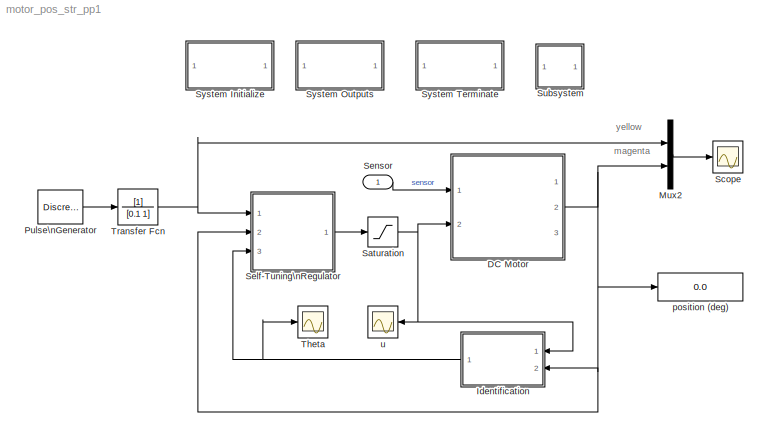
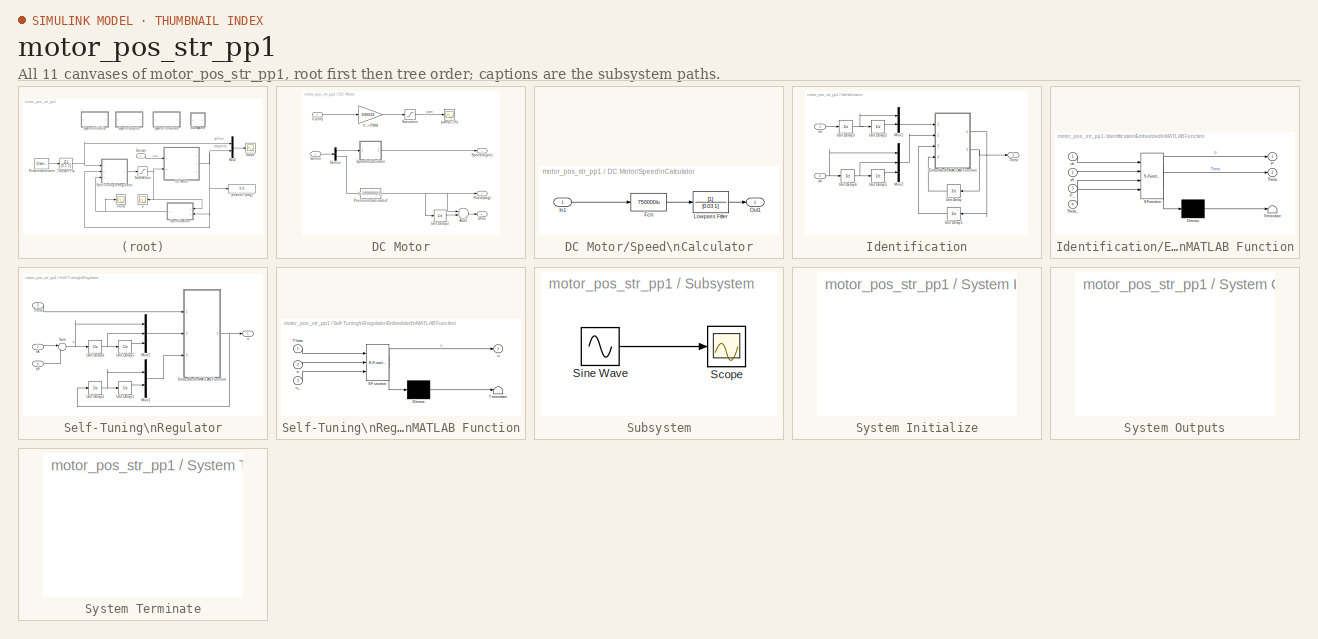
[diagram: thumbnail index - all 11 canvases of the model, root first then tree order]
MODEL motor_pos_str_pp1
KIND model
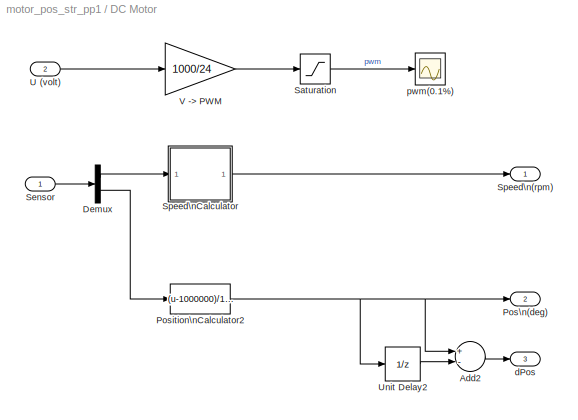
BLOCK [SubSystem] DC Motor
  FunctionWithSeparateData = off
  MaskHideContents = off
  MinAlgLoopOccurrences = off
  Opaque = off
  Ports = [2, 3]
  PropExecContextOutsideSubsystem = off
  RTWSystemCode = Auto
  RequestExecContextInheritance = off
  SID = 2
BLOCK [Sum] DC Motor/Add2
  InputSameDT = off
  Inputs = +-
  OutDataType = sfix(16)
  OutDataTypeMode = Inherit via internal rule
  OutDataTypeStr = Inherit: Inherit via internal rule
  OutScaling = 2^-10
  Ports = [2, 1]
  SID = 5
  SaturateOnIntegerOverflow = off
BLOCK [Demux] DC Motor/Demux
  DisplayOption = bar
  Outputs = 2
  Ports = [1, 2]
  SID = 6
BLOCK [Outport] DC Motor/Pos\n(deg)
  IconDisplay = Port number
  OutDataType = sfix(16)
  OutScaling = 2^0
  Port = 2
  SID = 18
BLOCK [Fcn] DC Motor/Position\nCalculator2
  Expr = (u-1000000)/1600*360
  SID = 7
BLOCK [Saturate] DC Motor/Saturation
  LowerLimit = -800
  SID = 8
  UpperLimit = 800
BLOCK [Inport] DC Motor/Sensor
  IconDisplay = Port number
  OutDataType = sfix(16)
  OutScaling = 2^0
  PortDimensions = 2
  SID = 3
BLOCK [Outport] DC Motor/Speed\n(rpm)
  IconDisplay = Port number
  OutDataType = sfix(16)
  OutScaling = 2^0
  SID = 17
BLOCK [SubSystem] DC Motor/Speed\nCalculator
  FunctionWithSeparateData = off
  MaskHideContents = off
  MinAlgLoopOccurrences = off
  Opaque = off
  Ports = [1, 1]
  PropExecContextOutsideSubsystem = off
  RTWSystemCode = Auto
  RequestExecContextInheritance = off
  SID = 9
BLOCK [Fcn] DC Motor/Speed\nCalculator/Fcn
  Expr = 750000/u
  SID = 11
BLOCK [Inport] DC Motor/Speed\nCalculator/In1
  IconDisplay = Port number
  OutDataType = sfix(16)
  OutScaling = 2^0
  SID = 10
BLOCK [TransferFcn] DC Motor/Speed\nCalculator/Lowpass Filter
  Denominator = [0.03 1]
  SID = 12
BLOCK [Outport] DC Motor/Speed\nCalculator/Out1
  IconDisplay = Port number
  OutDataType = sfix(16)
  OutScaling = 2^0
  SID = 13
BLOCK [Inport] DC Motor/U (volt)
  IconDisplay = Port number
  OutDataType = sfix(16)
  OutScaling = 2^0
  Port = 2
  PortDimensions = 1
  SID = 4
BLOCK [UnitDelay] DC Motor/Unit Delay2
  SID = 14
  SampleTime = -1
BLOCK [Gain] DC Motor/V -> PWM
  Gain = 1000/24
  OutDataType = sfix(16)
  OutDataTypeMode = Inherit via internal rule
  OutDataTypeStr = Inherit: Inherit via internal rule
  OutScaling = 2^0
  ParameterDataType = sfix(16)
  ParameterScaling = 2^0
  SID = 15
  SaturateOnIntegerOverflow = off
BLOCK [Outport] DC Motor/dPos
  IconDisplay = Port number
  OutDataType = sfix(16)
  OutScaling = 2^0
  Port = 3
  SID = 19
BLOCK [Scope] DC Motor/pwm(0.1%)
  DataFormat = Array
  Floating = off
  LimitDataPoints = off
  NumInputPorts = 1
  Ports = [1]
  SID = 16
  SampleTime = 0
  SaveName = ScopeData3
  SaveToWorkspace = on
  YMax = 1100
  YMin = -1100
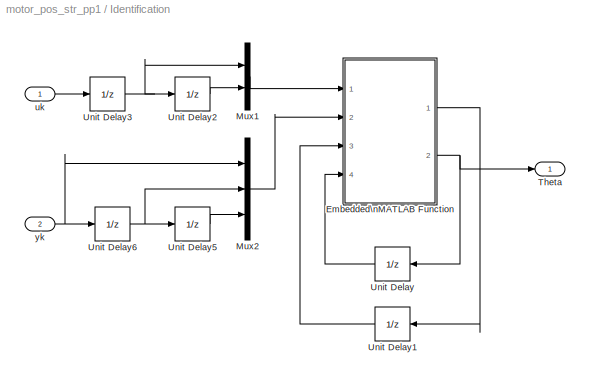
BLOCK [SubSystem] Identification
  FunctionWithSeparateData = off
  MaskHideContents = off
  MinAlgLoopOccurrences = off
  Opaque = off
  Ports = [2, 1]
  PropExecContextOutsideSubsystem = off
  RTWSystemCode = Auto
  RequestExecContextInheritance = off
  SID = 20
BLOCK [SubSystem] Identification/Embedded\nMATLAB Function
  FunctionWithSeparateData = off
  MaskDescription = Embedded MATLAB block
  MaskDisplay = disp('Uocluong');
  MaskHideContents = off
  MaskIconFrame = on
  MaskIconOpaque = off
  MaskIconRotate = none
  MaskIconUnits = autoscale
  MaskPortRotate = default
  MaskSelfModifiable = on
  MaskType = Stateflow
  MinAlgLoopOccurrences = off
  Opaque = off
  PermitHierarchicalResolution = ExplicitOnly
  Ports = [4, 2]
  PropExecContextOutsideSubsystem = off
  RTWSystemCode = Auto
  RequestExecContextInheritance = off
  SID = 23
BLOCK [Demux] Identification/Embedded\nMATLAB Function/ Demux 
  Outputs = 1
  Ports = [1, 1]
  SID = 11
BLOCK [S-Function] Identification/Embedded\nMATLAB Function/ SFunction 
  EnableBusSupport = off
  FunctionName = sf_sfun
  PortCounts = [4 3]
  Ports = [4, 3]
  SID = 10
  Tag = Stateflow S-Function motor_pos_str_pp1 1
BLOCK [Terminator] Identification/Embedded\nMATLAB Function/ Terminator 
  SID = 13
BLOCK [Outport] Identification/Embedded\nMATLAB Function/P
  IconDisplay = Port number
  SID = 8
BLOCK [Inport] Identification/Embedded\nMATLAB Function/P_
  IconDisplay = Port number
  Port = 3
  SID = 3
BLOCK [Outport] Identification/Embedded\nMATLAB Function/Theta
  IconDisplay = Port number
  Port = 2
  SID = 9
BLOCK [Inport] Identification/Embedded\nMATLAB Function/Theta_
  IconDisplay = Port number
  Port = 4
  SID = 4
BLOCK [Inport] Identification/Embedded\nMATLAB Function/uk
  IconDisplay = Port number
  OutDataType = sfix(16)
  OutScaling = 2^0
  SID = 1
BLOCK [Inport] Identification/Embedded\nMATLAB Function/yk
  IconDisplay = Port number
  Port = 2
  SID = 2
BLOCK [Mux] Identification/Mux1
  DisplayOption = bar
  Inputs = 2
  Ports = [2, 1]
  SID = 24
BLOCK [Mux] Identification/Mux2
  DisplayOption = bar
  Inputs = 3
  Ports = [3, 1]
  SID = 25
BLOCK [Outport] Identification/Theta
  IconDisplay = Port number
  OutDataType = fixdt(1, 16)
  OutScaling = 2^0
  PortDimensions = 4
  SID = 32
BLOCK [UnitDelay] Identification/Unit Delay
  SID = 26
  SampleTime = -1
  X0 = [-1; 0.1; 0.1; 1]
BLOCK [UnitDelay] Identification/Unit Delay1
  SID = 27
  SampleTime = -1
  X0 = 1e5*eye(4)
BLOCK [UnitDelay] Identification/Unit Delay2
  SID = 28
  SampleTime = -1
BLOCK [UnitDelay] Identification/Unit Delay3
  SID = 29
  SampleTime = -1
BLOCK [UnitDelay] Identification/Unit Delay5
  SID = 30
  SampleTime = -1
BLOCK [UnitDelay] Identification/Unit Delay6
  SID = 31
  SampleTime = -1
BLOCK [Inport] Identification/uk
  IconDisplay = Port number
  OutDataType = fixdt(1, 16)
  OutScaling = 2^0
  PortDimensions = 1
  SID = 21
BLOCK [Inport] Identification/yk
  IconDisplay = Port number
  OutDataType = fixdt(1, 16)
  OutScaling = 2^0
  Port = 2
  PortDimensions = 1
  SID = 22
BLOCK [Mux] Mux2
  DisplayOption = bar
  Inputs = 2
  Ports = [2, 1]
  SID = 33
BLOCK [DiscretePulseGenerator] Pulse\nGenerator
  Amplitude = 1000
  Period = 4
  PhaseDelay = 0
  Ports = [0, 1]
  PulseType = Time based
  PulseWidth = 50
  SID = 34
  SampleTime = 1
BLOCK [Saturate] Saturation
  LowerLimit = -16.8
  SID = 35
  UpperLimit = 16.8
BLOCK [Scope] Scope
  DataFormat = StructureWithTime
  Floating = off
  LimitDataPoints = off
  NumInputPorts = 1
  Ports = [1]
  SID = 36
  SampleTime = 0
  SaveToWorkspace = on
BLOCK [SubSystem] Self-Tuning\nRegulator
  FunctionWithSeparateData = off
  MaskHideContents = off
  MinAlgLoopOccurrences = off
  Opaque = off
  Ports = [3, 1]
  PropExecContextOutsideSubsystem = off
  RTWSystemCode = Auto
  RequestExecContextInheritance = off
  SID = 37
BLOCK [SubSystem] Self-Tuning\nRegulator/Embedded\nMATLAB Function
  FunctionWithSeparateData = off
  MaskDescription = Embedded MATLAB block
  MaskDisplay = disp('STR_pp1');
  MaskHideContents = off
  MaskIconFrame = on
  MaskIconOpaque = off
  MaskIconRotate = none
  MaskIconUnits = autoscale
  MaskPortRotate = default
  MaskSelfModifiable = on
  MaskType = Stateflow
  MinAlgLoopOccurrences = off
  Opaque = off
  PermitHierarchicalResolution = ExplicitOnly
  Ports = [3, 1]
  PropExecContextOutsideSubsystem = off
  RTWSystemCode = Auto
  RequestExecContextInheritance = off
  SID = 41
BLOCK [Demux] Self-Tuning\nRegulator/Embedded\nMATLAB Function/ Demux 
  Outputs = 1
  Ports = [1, 1]
  SID = 9
BLOCK [S-Function] Self-Tuning\nRegulator/Embedded\nMATLAB Function/ SFunction 
  EnableBusSupport = off
  FunctionName = sf_sfun
  PortCounts = [3 2]
  Ports = [3, 2]
  SID = 8
  Tag = Stateflow S-Function motor_pos_str_pp1 3
BLOCK [Terminator] Self-Tuning\nRegulator/Embedded\nMATLAB Function/ Terminator 
  SID = 11
BLOCK [Inport] Self-Tuning\nRegulator/Embedded\nMATLAB Function/Theta
  IconDisplay = Port number
  SID = 1
BLOCK [Inport] Self-Tuning\nRegulator/Embedded\nMATLAB Function/e
  IconDisplay = Port number
  Port = 2
  SID = 2
BLOCK [Outport] Self-Tuning\nRegulator/Embedded\nMATLAB Function/u
  IconDisplay = Port number
  SID = 7
BLOCK [Inport] Self-Tuning\nRegulator/Embedded\nMATLAB Function/u_
  IconDisplay = Port number
  Port = 3
  SID = 3
BLOCK [Mux] Self-Tuning\nRegulator/Mux1
  DisplayOption = bar
  Inputs = 2
  Ports = [2, 1]
  SID = 42
BLOCK [Mux] Self-Tuning\nRegulator/Mux2
  DisplayOption = bar
  Inputs = 3
  Ports = [3, 1]
  SID = 43
BLOCK [Sum] Self-Tuning\nRegulator/Sum
  IconShape = round
  InputSameDT = off
  Inputs = |+-
  OutDataType = sfix(16)
  OutDataTypeMode = Inherit via internal rule
  OutDataTypeStr = Inherit: Inherit via internal rule
  OutScaling = 2^0
  Ports = [2, 1]
  SID = 44
  SaturateOnIntegerOverflow = off
BLOCK [Inport] Self-Tuning\nRegulator/Theta
  IconDisplay = Port number
  OutDataType = fixdt(1, 16)
  OutScaling = 2^0
  Port = 3
  PortDimensions = 4
  SID = 40
BLOCK [UnitDelay] Self-Tuning\nRegulator/Unit Delay1
  SID = 45
  SampleTime = -1
BLOCK [UnitDelay] Self-Tuning\nRegulator/Unit Delay2
  SID = 46
  SampleTime = -1
BLOCK [UnitDelay] Self-Tuning\nRegulator/Unit Delay5
  SID = 47
  SampleTime = -1
BLOCK [UnitDelay] Self-Tuning\nRegulator/Unit Delay6
  SID = 48
  SampleTime = -1
BLOCK [Outport] Self-Tuning\nRegulator/u
  IconDisplay = Port number
  OutDataType = fixdt(1, 16)
  OutScaling = 2^0
  PortDimensions = 1
  SID = 49
BLOCK [Inport] Self-Tuning\nRegulator/wk
  IconDisplay = Port number
  OutDataType = fixdt(1, 16)
  OutScaling = 2^0
  PortDimensions = 1
  SID = 38
BLOCK [Inport] Self-Tuning\nRegulator/yk
  IconDisplay = Port number
  OutDataType = fixdt(1, 16)
  OutScaling = 2^0
  Port = 2
  PortDimensions = 1
  SID = 39
BLOCK [Inport] Sensor
  IconDisplay = Port number
  OutDataType = sfix(16)
  OutScaling = 2^0
  PortDimensions = 2
  SID = 1
BLOCK [SubSystem] Subsystem
  FunctionWithSeparateData = off
  MaskHideContents = off
  MinAlgLoopOccurrences = off
  Opaque = off
  Ports = []
  PropExecContextOutsideSubsystem = off
  RTWSystemCode = Auto
  RequestExecContextInheritance = off
  SID = 57
  TreatAsAtomicUnit = on
BLOCK [Scope] Subsystem/Scope
  DataFormat = StructureWithTime
  Floating = off
  NumInputPorts = 1
  Ports = [1]
  SID = 58
  SampleTime = 0
  SaveName = ScopeData1
BLOCK [Sin] Subsystem/Sine Wave
  Amplitude = 1
  Bias = 0
  Frequency = 1
  Offset = 0
  Phase = 0
  Ports = [0, 1]
  SID = 59
  SampleTime = 0
  Samples = 10
BLOCK [SubSystem] System Initialize
  CopyFcn = cccopyfcn(gcb)
  FunctionWithSeparateData = off
  MaskDescription = Add code to a systems Initialize function
  MaskDisplay = disp('System\\nInitialize');
  MaskEnableString = off
  MaskHelp = This block contains text fields to insert custom user code sections at the declaration, execution and exit sections of the systems initialize function.  By placing this block inside a subsytem, the custom user code will appear in that subsystems function.
  MaskHideContents = off
  MaskIconFrame = on
  MaskIconOpaque = on
  MaskIconRotate = none
  MaskIconUnits = autoscale
  MaskPortRotate = default
  MaskPromptString = Mask Parameter 1:
  MaskStyleString = edit
  MaskToolTipString = on
  MaskTunableValueString = on
  MaskType = System Initialize
  MaskValueString = 0
  MaskVariables = ShowInLibBrowser=@1;
  MaskVisibilityString = off
  MinAlgLoopOccurrences = off
  Opaque = off
  OpenFcn = ccopenfcn('System Initialize Function')
  Ports = []
  PropExecContextOutsideSubsystem = off
  RTWSystemCode = Auto
  RequestExecContextInheritance = off
  SID = 50
BLOCK [SubSystem] System Outputs
  CopyFcn = cccopyfcn(gcb)
  FunctionWithSeparateData = off
  MaskDescription = Add code to a systems Outputs function
  MaskDisplay = disp('System\\nOutputs');
  MaskEnableString = off
  MaskHelp = This block contains text fields to insert custom user code sections at the declaration, execution and exit sections of the systems outputs function.  By placing this block inside a subsytem, the custom user code will appear in that subsystems function.
  MaskHideContents = off
  MaskIconFrame = on
  MaskIconOpaque = on
  MaskIconRotate = none
  MaskIconUnits = autoscale
  MaskPortRotate = default
  MaskPromptString = Mask Parameter 1:
  MaskStyleString = edit
  MaskToolTipString = on
  MaskTunableValueString = on
  MaskType = System Outputs
  MaskValueString = 0
  MaskVariables = ShowInLibBrowser=@1;
  MaskVisibilityString = off
  MinAlgLoopOccurrences = off
  Opaque = off
  OpenFcn = ccopenfcn('System Outputs Function')
  Ports = []
  PropExecContextOutsideSubsystem = off
  RTWSystemCode = Auto
  RequestExecContextInheritance = off
  SID = 51
BLOCK [SubSystem] System Terminate
  CopyFcn = cccopyfcn(gcb)
  FunctionWithSeparateData = off
  MaskDescription = Add code to a systems Terminate function
  MaskDisplay = disp('System\\nTerminate');
  MaskEnableString = off
  MaskHelp = This block contains text fields to insert custom user code sections at the declaration, execution and exit sections of the systems terminate function.  By placing this block inside a subsytem, the custom user code will appear in that subsystems function.
  MaskHideContents = off
  MaskIconFrame = on
  MaskIconOpaque = on
  MaskIconRotate = none
  MaskIconUnits = autoscale
  MaskPortRotate = default
  MaskPromptString = Mask Parameter 1:
  MaskStyleString = edit
  MaskToolTipString = on
  MaskTunableValueString = on
  MaskType = System Terminate
  MaskValueString = 0
  MaskVariables = ShowInLibBrowser=@1;
  MaskVisibilityString = off
  MinAlgLoopOccurrences = off
  Opaque = off
  OpenFcn = ccopenfcn('System Terminate Function')
  Ports = []
  PropExecContextOutsideSubsystem = off
  RTWSystemCode = Auto
  RequestExecContextInheritance = off
  SID = 52
BLOCK [Scope] Theta
  DataFormat = StructureWithTime
  Floating = off
  LimitDataPoints = off
  NumInputPorts = 1
  Ports = [1]
  SID = 53
  SampleTime = 0
  SaveName = ScopeData2
  SaveToWorkspace = on
BLOCK [TransferFcn] Transfer Fcn
  Denominator = [0.1 1]
  SID = 54
BLOCK [Display] position (deg)
  Decimation = 1
  Lockdown = off
  Ports = [1]
  SID = 55
BLOCK [Scope] u
  DataFormat = StructureWithTime
  Floating = off
  LimitDataPoints = off
  NumInputPorts = 1
  Ports = [1]
  SID = 56
  SampleTime = 0
  SaveName = ScopeData1
  SaveToWorkspace = on
ANNOTATION (root): magenta
ANNOTATION (root): yellow
ANNOTATION Self-Tuning\nRegulator: e
LINE DC Motor/Add2:1 -> DC Motor/dPos:1
LINE DC Motor/Demux:1 -> DC Motor/Speed\nCalculator:1
LINE DC Motor/Demux:2 -> DC Motor/Position\nCalculator2:1
NET DC Motor/Position\nCalculator2:1 -> DC Motor/Add2:1, DC Motor/Pos\n(deg):1, DC Motor/Unit Delay2:1
LINE DC Motor/Saturation:1 -> DC Motor/pwm(0.1%):1
LINE DC Motor/Sensor:1 -> DC Motor/Demux:1
LINE DC Motor/Speed\nCalculator/Fcn:1 -> DC Motor/Speed\nCalculator/Lowpass Filter:1
LINE DC Motor/Speed\nCalculator/In1:1 -> DC Motor/Speed\nCalculator/Fcn:1
LINE DC Motor/Speed\nCalculator/Lowpass Filter:1 -> DC Motor/Speed\nCalculator/Out1:1
LINE DC Motor/Speed\nCalculator:1 -> DC Motor/Speed\n(rpm):1
LINE DC Motor/U (volt):1 -> DC Motor/V -> PWM:1
LINE DC Motor/Unit Delay2:1 -> DC Motor/Add2:2
LINE DC Motor/V -> PWM:1 -> DC Motor/Saturation:1
NET DC Motor:2 -> Identification:2, Mux2:2, Self-Tuning\nRegulator:2, position (deg):1
LINE Identification/Embedded\nMATLAB Function/ Demux :1 -> Identification/Embedded\nMATLAB Function/ Terminator :1
LINE Identification/Embedded\nMATLAB Function/ SFunction :1 -> Identification/Embedded\nMATLAB Function/ Demux :1
LINE Identification/Embedded\nMATLAB Function/ SFunction :2 -> Identification/Embedded\nMATLAB Function/P:1
LINE Identification/Embedded\nMATLAB Function/ SFunction :3 -> Identification/Embedded\nMATLAB Function/Theta:1
LINE Identification/Embedded\nMATLAB Function/P_:1 -> Identification/Embedded\nMATLAB Function/ SFunction :3
LINE Identification/Embedded\nMATLAB Function/Theta_:1 -> Identification/Embedded\nMATLAB Function/ SFunction :4
LINE Identification/Embedded\nMATLAB Function/uk:1 -> Identification/Embedded\nMATLAB Function/ SFunction :1
LINE Identification/Embedded\nMATLAB Function/yk:1 -> Identification/Embedded\nMATLAB Function/ SFunction :2
LINE Identification/Embedded\nMATLAB Function:1 -> Identification/Unit Delay1:1
NET Identification/Embedded\nMATLAB Function:2 -> Identification/Theta:1, Identification/Unit Delay:1
LINE Identification/Mux1:1 -> Identification/Embedded\nMATLAB Function:1
LINE Identification/Mux2:1 -> Identification/Embedded\nMATLAB Function:2
LINE Identification/Unit Delay1:1 -> Identification/Embedded\nMATLAB Function:3
LINE Identification/Unit Delay2:1 -> Identification/Mux1:2
NET Identification/Unit Delay3:1 -> Identification/Mux1:1, Identification/Unit Delay2:1
LINE Identification/Unit Delay5:1 -> Identification/Mux2:3
NET Identification/Unit Delay6:1 -> Identification/Mux2:2, Identification/Unit Delay5:1
LINE Identification/Unit Delay:1 -> Identification/Embedded\nMATLAB Function:4
LINE Identification/uk:1 -> Identification/Unit Delay3:1
NET Identification/yk:1 -> Identification/Mux2:1, Identification/Unit Delay6:1
NET Identification:1 -> Self-Tuning\nRegulator:3, Theta:1
LINE Mux2:1 -> Scope:1
LINE Pulse\nGenerator:1 -> Transfer Fcn:1
NET Saturation:1 -> DC Motor:2, Identification:1, u:1
LINE Self-Tuning\nRegulator/Embedded\nMATLAB Function/ Demux :1 -> Self-Tuning\nRegulator/Embedded\nMATLAB Function/ Terminator :1
LINE Self-Tuning\nRegulator/Embedded\nMATLAB Function/ SFunction :1 -> Self-Tuning\nRegulator/Embedded\nMATLAB Function/ Demux :1
LINE Self-Tuning\nRegulator/Embedded\nMATLAB Function/ SFunction :2 -> Self-Tuning\nRegulator/Embedded\nMATLAB Function/u:1
LINE Self-Tuning\nRegulator/Embedded\nMATLAB Function/Theta:1 -> Self-Tuning\nRegulator/Embedded\nMATLAB Function/ SFunction :1
LINE Self-Tuning\nRegulator/Embedded\nMATLAB Function/e:1 -> Self-Tuning\nRegulator/Embedded\nMATLAB Function/ SFunction :2
LINE Self-Tuning\nRegulator/Embedded\nMATLAB Function/u_:1 -> Self-Tuning\nRegulator/Embedded\nMATLAB Function/ SFunction :3
NET Self-Tuning\nRegulator/Embedded\nMATLAB Function:1 -> Self-Tuning\nRegulator/Unit Delay2:1, Self-Tuning\nRegulator/u:1
LINE Self-Tuning\nRegulator/Mux1:1 -> Self-Tuning\nRegulator/Embedded\nMATLAB Function:3
LINE Self-Tuning\nRegulator/Mux2:1 -> Self-Tuning\nRegulator/Embedded\nMATLAB Function:2
NET Self-Tuning\nRegulator/Sum:1 -> Self-Tuning\nRegulator/Mux2:1, Self-Tuning\nRegulator/Unit Delay6:1
LINE Self-Tuning\nRegulator/Theta:1 -> Self-Tuning\nRegulator/Embedded\nMATLAB Function:1
LINE Self-Tuning\nRegulator/Unit Delay1:1 -> Self-Tuning\nRegulator/Mux1:2
NET Self-Tuning\nRegulator/Unit Delay2:1 -> Self-Tuning\nRegulator/Mux1:1, Self-Tuning\nRegulator/Unit Delay1:1
LINE Self-Tuning\nRegulator/Unit Delay5:1 -> Self-Tuning\nRegulator/Mux2:3
NET Self-Tuning\nRegulator/Unit Delay6:1 -> Self-Tuning\nRegulator/Mux2:2, Self-Tuning\nRegulator/Unit Delay5:1
LINE Self-Tuning\nRegulator/wk:1 -> Self-Tuning\nRegulator/Sum:1
LINE Self-Tuning\nRegulator/yk:1 -> Self-Tuning\nRegulator/Sum:2
LINE Self-Tuning\nRegulator:1 -> Saturation:1
LINE Sensor:1 -> DC Motor:1
LINE Subsystem/Sine Wave:1 -> Subsystem/Scope:1
NET Transfer Fcn:1 -> Mux2:1, Self-Tuning\nRegulator:1
note: NET lines group one-source signal fan-out (src -> all destinations, sorted); 1:1 wires keep LINE
CHART Identification/Embedded\nMATLAB Function states=1 transitions=1
  STATE_LABEL 'eML_blk_kernel()'
CHART Self-Tuning\nRegulator/Embedded\nMATLAB Function states=1 transitions=1
  STATE_LABEL 'eML_blk_kernel()'
